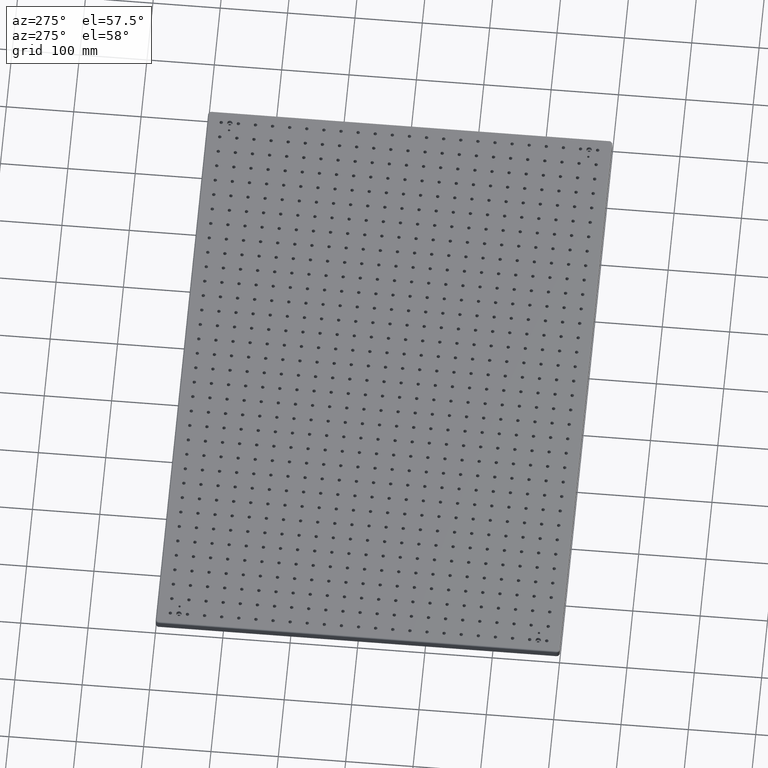
[diagram: clean part render]
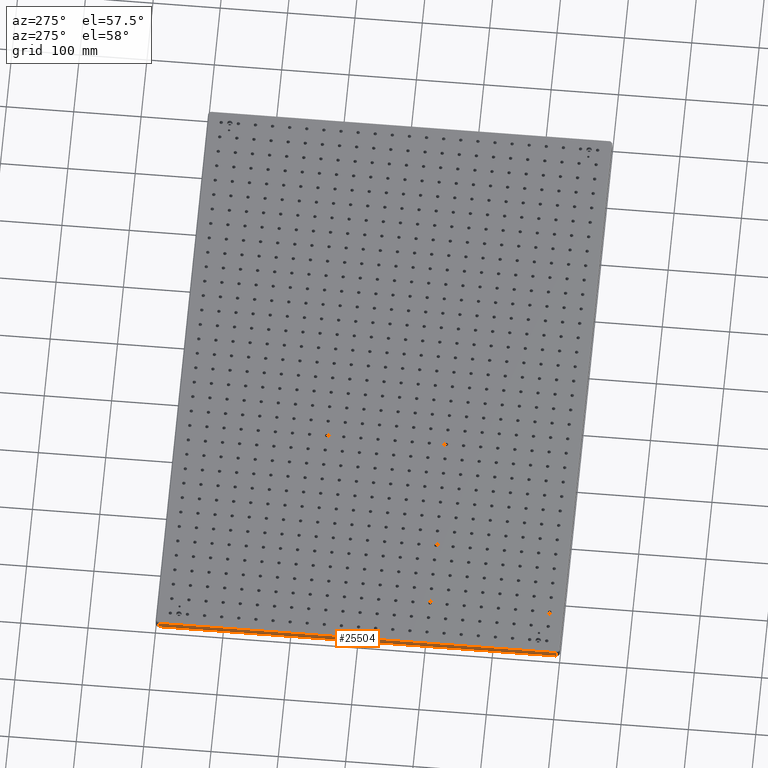
[diagram: same view with one face highlighted and labeled with its STEP entity id]
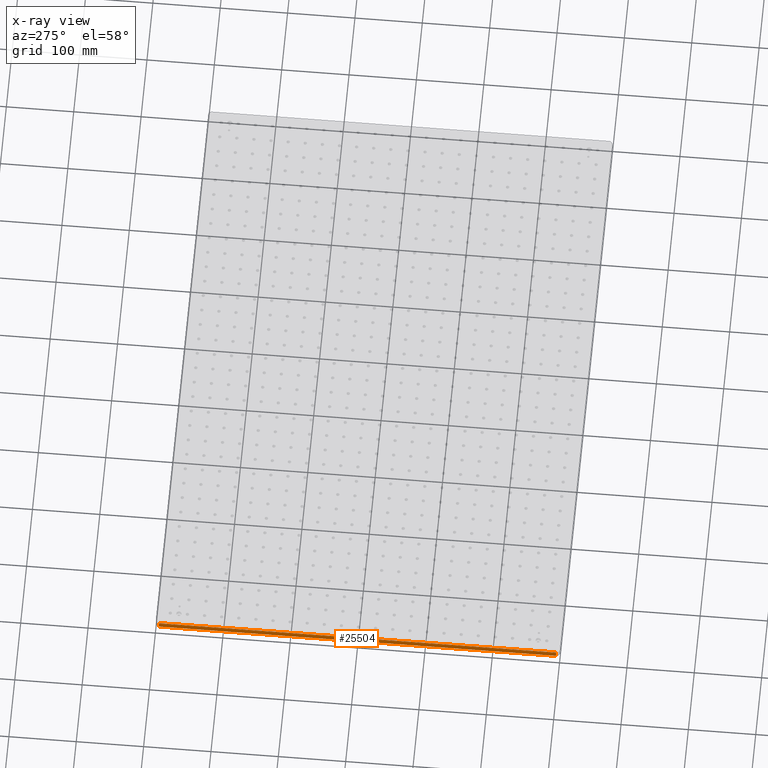
[diagram: x-ray of the same camera — body ghosted, the highlighted face saturated]
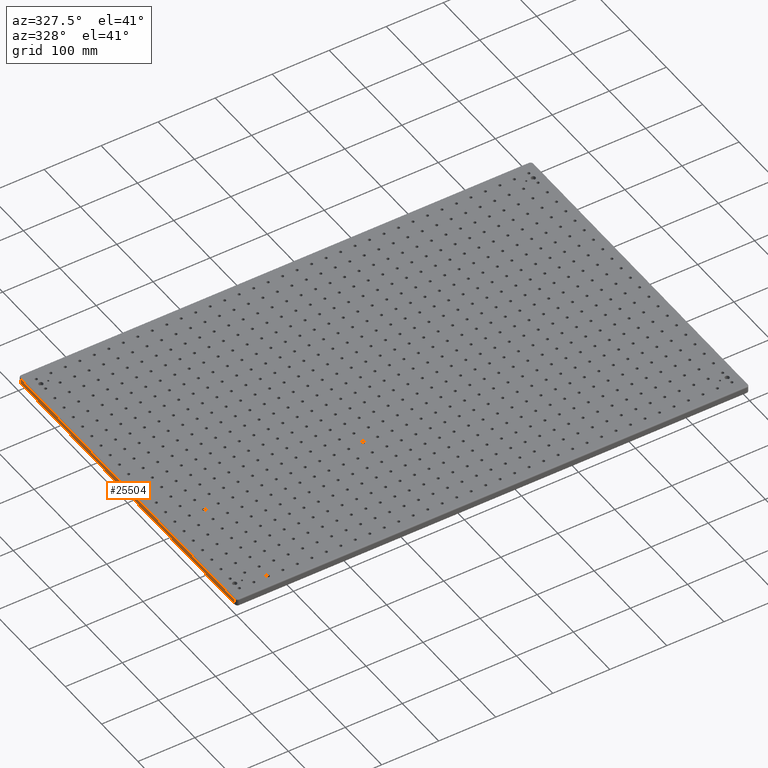
[diagram: same view with one face highlighted and labeled with its STEP entity id]
A machine part, auxiliary view. The second image highlights one B-rep face of the part: STEP entity #25504.
The next image is the same camera in x-ray: the body ghosted, the highlighted face saturated — about 0% of this face is hidden behind the body in this view.
A second angle (auxiliary view) of the same face is appended — the face is thin or edge-on in the first view.
In plain terms, the highlighted planar face has unit normal (-1, 0, 0).
Its self-contained STEP definition (entity closure, byte-faithful):
#749 = DIRECTION ( 'NONE',  ( -0.0000000000000000000, -0.0000000000000000000, -1.000000000000000000 ) ) ;
#2635 = VERTEX_POINT ( 'NONE', #33027 ) ;
#3305 = DIRECTION ( 'NONE',  ( 0.0000000000000000000, 0.0000000000000000000, 1.000000000000000000 ) ) ;
#6455 = LINE ( 'NONE', #41501, #55219 ) ;
#8937 = VERTEX_POINT ( 'NONE', #13408 ) ;
#9614 = EDGE_LOOP ( 'NONE', ( #46647, #17876, #25086, #46373 ) ) ;
#10079 = VECTOR ( 'NONE', #43753, 1000.000000000000000 ) ;
#10878 = EDGE_CURVE ( 'NONE', #43043, #2635, #6455, .T. ) ;
#12668 = VECTOR ( 'NONE', #44240, 1000.000000000000000 ) ;
#13408 = CARTESIAN_POINT ( 'NONE',  ( 0.0000000000000000000, 595.0000000000000000, -11.00000000000000000 ) ) ;
#17876 = ORIENTED_EDGE ( 'NONE', *, *, #20991, .T. ) ;
#18029 = PLANE ( 'NONE',  #31787 ) ;
#19485 = CARTESIAN_POINT ( 'NONE',  ( 0.0000000000000000000, 595.0000000000000000, -13.00000000000000000 ) ) ;
#20186 = CARTESIAN_POINT ( 'NONE',  ( 0.0000000000000000000, 0.0000000000000000000, -11.00000000000000000 ) ) ;
#20991 = EDGE_CURVE ( 'NONE', #8937, #43043, #22620, .T. ) ;
#21768 = FACE_OUTER_BOUND ( 'NONE', #9614, .T. ) ;
#22620 = LINE ( 'NONE', #20186, #10079 ) ;
#22827 = DIRECTION ( 'NONE',  ( 0.0000000000000000000, 0.0000000000000000000, 1.000000000000000000 ) ) ;
#25086 = ORIENTED_EDGE ( 'NONE', *, *, #10878, .T. ) ;
#25504 = ADVANCED_FACE ( 'NONE', ( #21768 ), #18029, .T. ) ;
#28743 = LINE ( 'NONE', #19485, #44301 ) ;
#31787 = AXIS2_PLACEMENT_3D ( 'NONE', #55822, #31912, #22827 ) ;
#31912 = DIRECTION ( 'NONE',  ( -1.000000000000000000, 0.0000000000000000000, 0.0000000000000000000 ) ) ;
#33027 = CARTESIAN_POINT ( 'NONE',  ( 0.0000000000000000000, 4.999999999999998200, -2.000000000000000000 ) ) ;
#37255 = CARTESIAN_POINT ( 'NONE',  ( 0.0000000000000000000, 4.999999999999998200, -11.00000000000000000 ) ) ;
#40742 = LINE ( 'NONE', #44624, #12668 ) ;
#41501 = CARTESIAN_POINT ( 'NONE',  ( 0.0000000000000000000, 4.999999999999998200, -13.00000000000000000 ) ) ;
#43043 = VERTEX_POINT ( 'NONE', #37255 ) ;
#43753 = DIRECTION ( 'NONE',  ( 0.0000000000000000000, -1.000000000000000000, 0.0000000000000000000 ) ) ;
#43823 = EDGE_CURVE ( 'NONE', #2635, #59718, #40742, .T. ) ;
#44240 = DIRECTION ( 'NONE',  ( -0.0000000000000000000, 1.000000000000000000, -0.0000000000000000000 ) ) ;
#44301 = VECTOR ( 'NONE', #749, 1000.000000000000000 ) ;
#44624 = CARTESIAN_POINT ( 'NONE',  ( 0.0000000000000000000, 595.0000000000000000, -2.000000000000000000 ) ) ;
#46373 = ORIENTED_EDGE ( 'NONE', *, *, #43823, .T. ) ;
#46647 = ORIENTED_EDGE ( 'NONE', *, *, #56001, .T. ) ;
#55219 = VECTOR ( 'NONE', #3305, 1000.000000000000000 ) ;
#55822 = CARTESIAN_POINT ( 'NONE',  ( 0.0000000000000000000, 0.0000000000000000000, -13.00000000000000000 ) ) ;
#56001 = EDGE_CURVE ( 'NONE', #59718, #8937, #28743, .T. ) ;
#59181 = CARTESIAN_POINT ( 'NONE',  ( 0.0000000000000000000, 595.0000000000000000, -2.000000000000000000 ) ) ;
#59718 = VERTEX_POINT ( 'NONE', #59181 ) ;